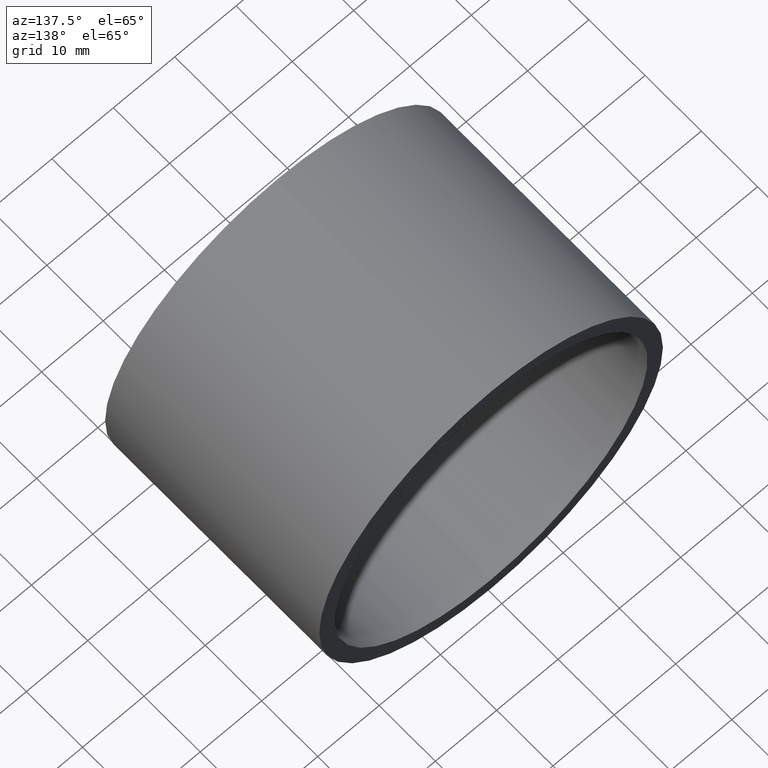
[diagram: clean part render]
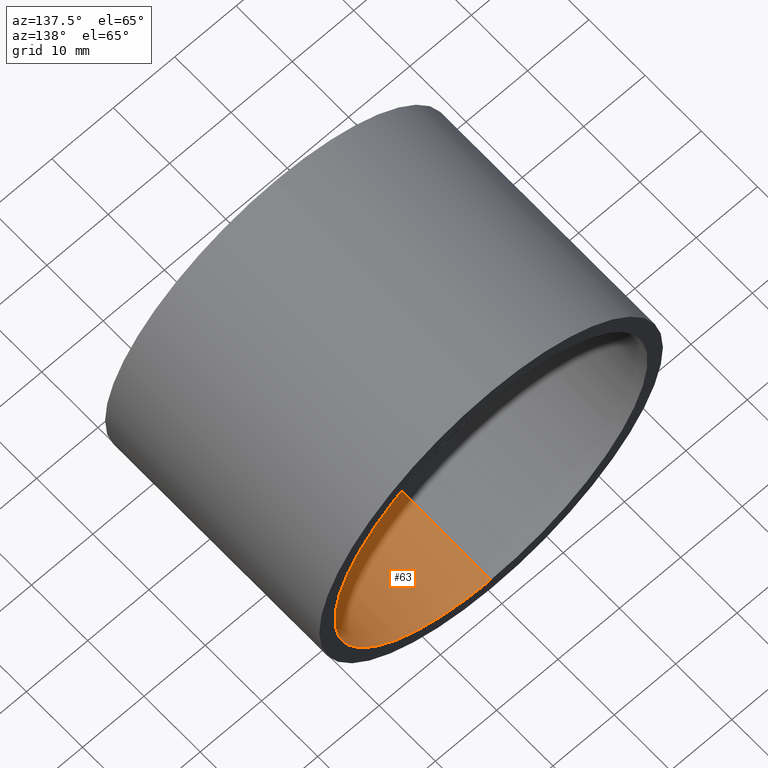
[diagram: same view with one face highlighted and labeled with its STEP entity id]
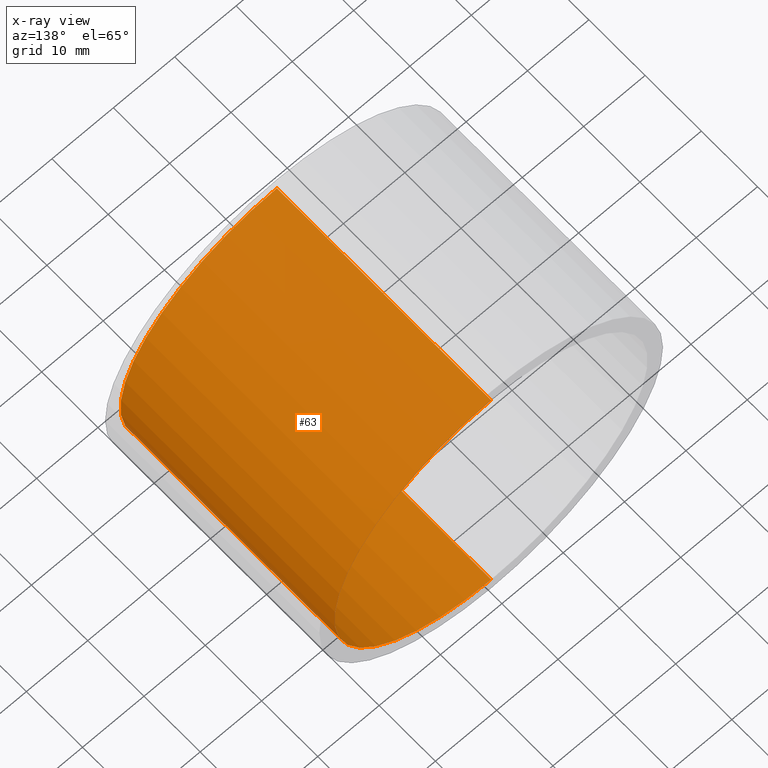
[diagram: x-ray of the same camera — body ghosted, the highlighted face saturated]
A machine part, auxiliary view. The second image highlights one B-rep face of the part: STEP entity #63.
The next image is the same camera in x-ray: the body ghosted, the highlighted face saturated — about 0% of this face is hidden behind the body in this view.
In plain terms, the highlighted cylindrical surface (partial cylindrical patch) has radius 25.5 mm, axis along (-0, 1, -0).
Its self-contained STEP definition (entity closure, byte-faithful):
#8 = CARTESIAN_POINT ( 'NONE',  ( 3.122849337825752200E-015, 38.09999999999999400, -25.50000000000001100 ) ) ;
#10 = CIRCLE ( 'NONE', #189, 25.50000000000001100 ) ;
#11 = VERTEX_POINT ( 'NONE', #8 ) ;
#15 = ORIENTED_EDGE ( 'NONE', *, *, #122, .F. ) ;
#25 = DIRECTION ( 'NONE',  ( 0.0000000000000000000, 0.0000000000000000000, 1.000000000000000000 ) ) ;
#31 = VERTEX_POINT ( 'NONE', #215 ) ;
#40 = VERTEX_POINT ( 'NONE', #133 ) ;
#46 = ORIENTED_EDGE ( 'NONE', *, *, #109, .F. ) ;
#49 = EDGE_CURVE ( 'NONE', #31, #11, #10, .T. ) ;
#51 = LINE ( 'NONE', #202, #144 ) ;
#59 = FACE_OUTER_BOUND ( 'NONE', #236, .T. ) ;
#63 = ADVANCED_FACE ( 'NONE', ( #59 ), #168, .F. ) ;
#64 = CARTESIAN_POINT ( 'NONE',  ( 3.122849337825752600E-015, 161.3761669434274500, -25.50000000000001400 ) ) ;
#66 = CARTESIAN_POINT ( 'NONE',  ( 0.0000000000000000000, -2.775557561562891400E-014, 0.0000000000000000000 ) ) ;
#73 = ORIENTED_EDGE ( 'NONE', *, *, #194, .T. ) ;
#79 = DIRECTION ( 'NONE',  ( -0.0000000000000000000, 1.000000000000000000, -0.0000000000000000000 ) ) ;
#89 = VERTEX_POINT ( 'NONE', #212 ) ;
#95 = DIRECTION ( 'NONE',  ( 0.0000000000000000000, 0.0000000000000000000, 1.000000000000000000 ) ) ;
#107 = LINE ( 'NONE', #64, #211 ) ;
#109 = EDGE_CURVE ( 'NONE', #89, #11, #107, .T. ) ;
#112 = DIRECTION ( 'NONE',  ( -0.0000000000000000000, 1.000000000000000000, -0.0000000000000000000 ) ) ;
#122 = EDGE_CURVE ( 'NONE', #40, #89, #154, .T. ) ;
#126 = AXIS2_PLACEMENT_3D ( 'NONE', #234, #232, #95 ) ;
#133 = CARTESIAN_POINT ( 'NONE',  ( 0.0000000000000000000, -2.775557561562891400E-014, 25.50000000000001400 ) ) ;
#137 = DIRECTION ( 'NONE',  ( -0.0000000000000000000, 1.000000000000000000, -0.0000000000000000000 ) ) ;
#144 = VECTOR ( 'NONE', #79, 1000.000000000000000 ) ;
#154 = CIRCLE ( 'NONE', #198, 25.50000000000001400 ) ;
#167 = ORIENTED_EDGE ( 'NONE', *, *, #49, .T. ) ;
#168 = CYLINDRICAL_SURFACE ( 'NONE', #126, 25.50000000000001400 ) ;
#174 = DIRECTION ( 'NONE',  ( -0.0000000000000000000, 1.000000000000000000, -0.0000000000000000000 ) ) ;
#189 = AXIS2_PLACEMENT_3D ( 'NONE', #192, #137, #25 ) ;
#192 = CARTESIAN_POINT ( 'NONE',  ( 0.0000000000000000000, 38.09999999999999400, 0.0000000000000000000 ) ) ;
#194 = EDGE_CURVE ( 'NONE', #40, #31, #51, .T. ) ;
#198 = AXIS2_PLACEMENT_3D ( 'NONE', #66, #174, #199 ) ;
#199 = DIRECTION ( 'NONE',  ( 0.0000000000000000000, 0.0000000000000000000, 1.000000000000000000 ) ) ;
#202 = CARTESIAN_POINT ( 'NONE',  ( 0.0000000000000000000, 161.3761669434274500, 25.50000000000001400 ) ) ;
#211 = VECTOR ( 'NONE', #112, 1000.000000000000000 ) ;
#212 = CARTESIAN_POINT ( 'NONE',  ( 3.122849337825752600E-015, -2.775557561562891400E-014, -25.50000000000001400 ) ) ;
#215 = CARTESIAN_POINT ( 'NONE',  ( 0.0000000000000000000, 38.09999999999999400, 25.50000000000001100 ) ) ;
#232 = DIRECTION ( 'NONE',  ( -0.0000000000000000000, 1.000000000000000000, -0.0000000000000000000 ) ) ;
#234 = CARTESIAN_POINT ( 'NONE',  ( 0.0000000000000000000, 161.3761669434274500, 0.0000000000000000000 ) ) ;
#236 = EDGE_LOOP ( 'NONE', ( #46, #15, #73, #167 ) ) ;